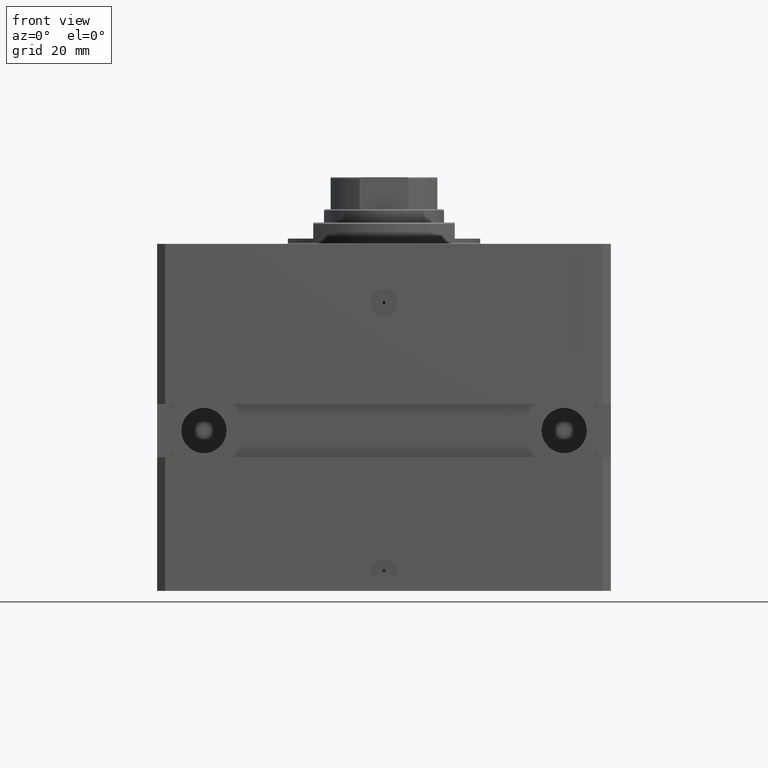
[diagram: clean part render]
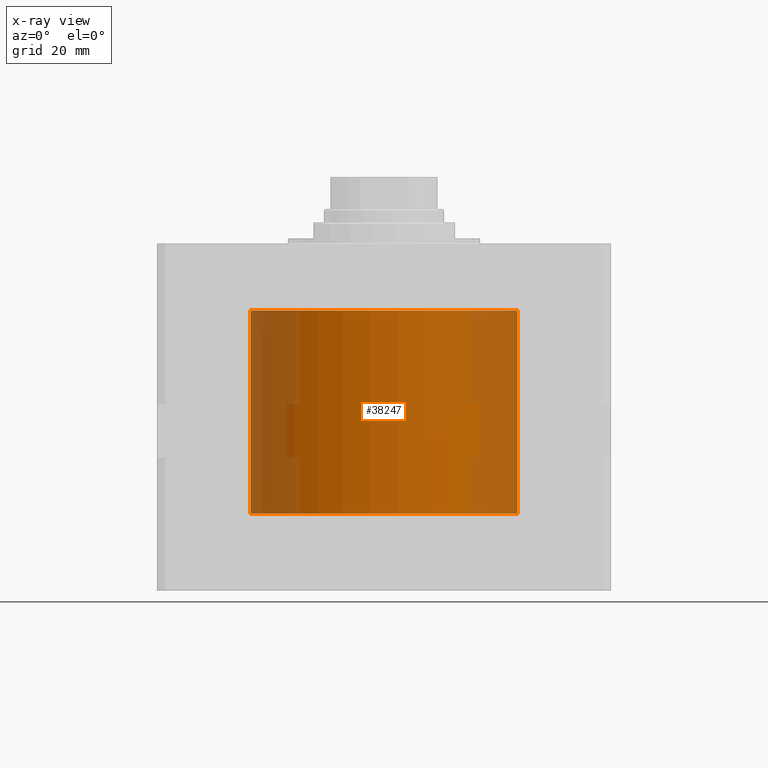
[diagram: x-ray — body ghosted, one internal face saturated and labeled with its STEP entity id]
A machine part, front view, then the same camera in x-ray: the body is ghosted and one INTERNAL B-rep face — a face not visible from any outside direction — is saturated and labeled: STEP entity #38247.
In plain terms, the highlighted cylindrical surface (partial cylindrical patch) has radius 50 mm, axis along (0, 0, 1).
Its self-contained STEP definition (entity closure, byte-faithful):
#402 = EDGE_CURVE ( 'NONE', #35972, #10259, #37152, .T. ) ;
#566 = VECTOR ( 'NONE', #48036, 1000.000000000000000 ) ;
#855 = CYLINDRICAL_SURFACE ( 'NONE', #46977, 50.00000000000000000 ) ;
#2941 = CARTESIAN_POINT ( 'NONE',  ( -50.00000000000000000, 6.123233995736764507E-15, -101.0999999999999943 ) ) ;
#5624 = EDGE_CURVE ( 'NONE', #36930, #40264, #30238, .T. ) ;
#7149 = LINE ( 'NONE', #17908, #566 ) ;
#7754 = DIRECTION ( 'NONE',  ( -0.000000000000000000, -0.000000000000000000, 1.000000000000000000 ) ) ;
#10259 = VERTEX_POINT ( 'NONE', #14009 ) ;
#14009 = CARTESIAN_POINT ( 'NONE',  ( 50.00000000000000000, 0.000000000000000000, -101.0999999999999943 ) ) ;
#15391 = DIRECTION ( 'NONE',  ( 0.000000000000000000, 0.000000000000000000, 1.000000000000000000 ) ) ;
#16966 = DIRECTION ( 'NONE',  ( 1.000000000000000000, 0.000000000000000000, 0.000000000000000000 ) ) ;
#17908 = CARTESIAN_POINT ( 'NONE',  ( 50.00000000000000000, 0.000000000000000000, -101.0999999999999943 ) ) ;
#19241 = FACE_OUTER_BOUND ( 'NONE', #30545, .T. ) ;
#21106 = DIRECTION ( 'NONE',  ( 0.000000000000000000, 0.000000000000000000, 1.000000000000000000 ) ) ;
#26974 = ORIENTED_EDGE ( 'NONE', *, *, #41063, .T. ) ;
#28677 = AXIS2_PLACEMENT_3D ( 'NONE', #30105, #15391, #30339 ) ;
#29728 = EDGE_CURVE ( 'NONE', #10259, #40264, #7149, .T. ) ;
#30105 = CARTESIAN_POINT ( 'NONE',  ( 0.000000000000000000, 0.000000000000000000, -24.99999999999999289 ) ) ;
#30238 = CIRCLE ( 'NONE', #28677, 50.00000000000000000 ) ;
#30339 = DIRECTION ( 'NONE',  ( 1.000000000000000000, 0.000000000000000000, 0.000000000000000000 ) ) ;
#30545 = EDGE_LOOP ( 'NONE', ( #41108, #26974, #32043, #34906 ) ) ;
#30987 = DIRECTION ( 'NONE',  ( 1.000000000000000000, 0.000000000000000000, 0.000000000000000000 ) ) ;
#32043 = ORIENTED_EDGE ( 'NONE', *, *, #5624, .T. ) ;
#32149 = CARTESIAN_POINT ( 'NONE',  ( 0.000000000000000000, 0.000000000000000000, -101.0999999999999943 ) ) ;
#34428 = CARTESIAN_POINT ( 'NONE',  ( 0.000000000000000000, 0.000000000000000000, -101.0999999999999943 ) ) ;
#34783 = CARTESIAN_POINT ( 'NONE',  ( -50.00000000000000000, 6.123233995736764507E-15, -101.0999999999999943 ) ) ;
#34906 = ORIENTED_EDGE ( 'NONE', *, *, #29728, .F. ) ;
#35254 = VECTOR ( 'NONE', #36989, 1000.000000000000000 ) ;
#35972 = VERTEX_POINT ( 'NONE', #34783 ) ;
#36930 = VERTEX_POINT ( 'NONE', #47029 ) ;
#36989 = DIRECTION ( 'NONE',  ( -0.000000000000000000, -0.000000000000000000, 1.000000000000000000 ) ) ;
#37152 = CIRCLE ( 'NONE', #46556, 50.00000000000000000 ) ;
#38247 = ADVANCED_FACE ( 'NONE', ( #19241 ), #855, .F. ) ;
#40264 = VERTEX_POINT ( 'NONE', #42825 ) ;
#41063 = EDGE_CURVE ( 'NONE', #35972, #36930, #43607, .T. ) ;
#41108 = ORIENTED_EDGE ( 'NONE', *, *, #402, .F. ) ;
#42825 = CARTESIAN_POINT ( 'NONE',  ( 50.00000000000000000, 0.000000000000000000, -24.99999999999999289 ) ) ;
#43607 = LINE ( 'NONE', #2941, #35254 ) ;
#46556 = AXIS2_PLACEMENT_3D ( 'NONE', #32149, #21106, #16966 ) ;
#46977 = AXIS2_PLACEMENT_3D ( 'NONE', #34428, #7754, #30987 ) ;
#47029 = CARTESIAN_POINT ( 'NONE',  ( -50.00000000000000000, 6.123233995736764507E-15, -24.99999999999999289 ) ) ;
#48036 = DIRECTION ( 'NONE',  ( -0.000000000000000000, -0.000000000000000000, 1.000000000000000000 ) ) ;